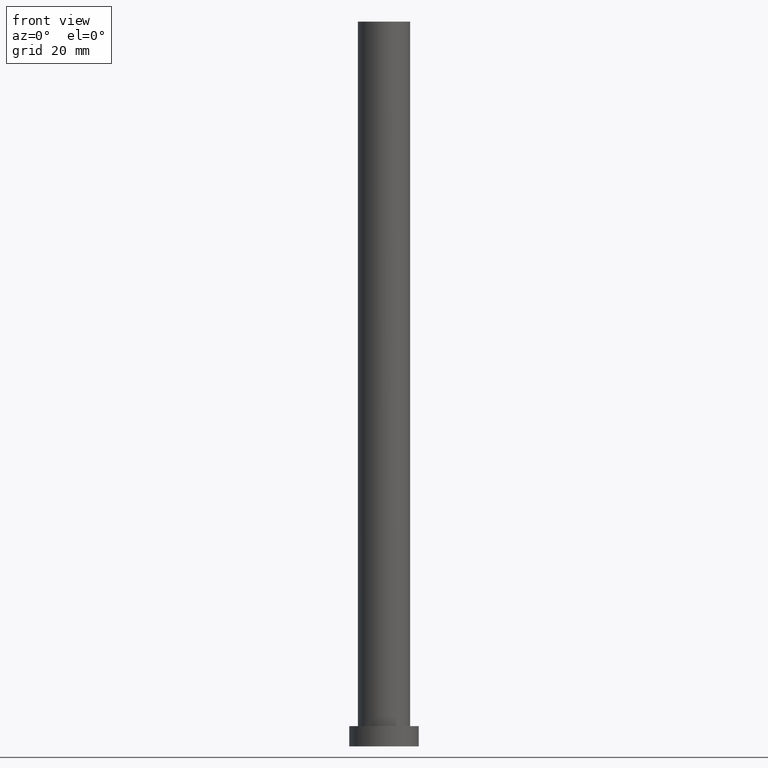
[diagram: clean part render]
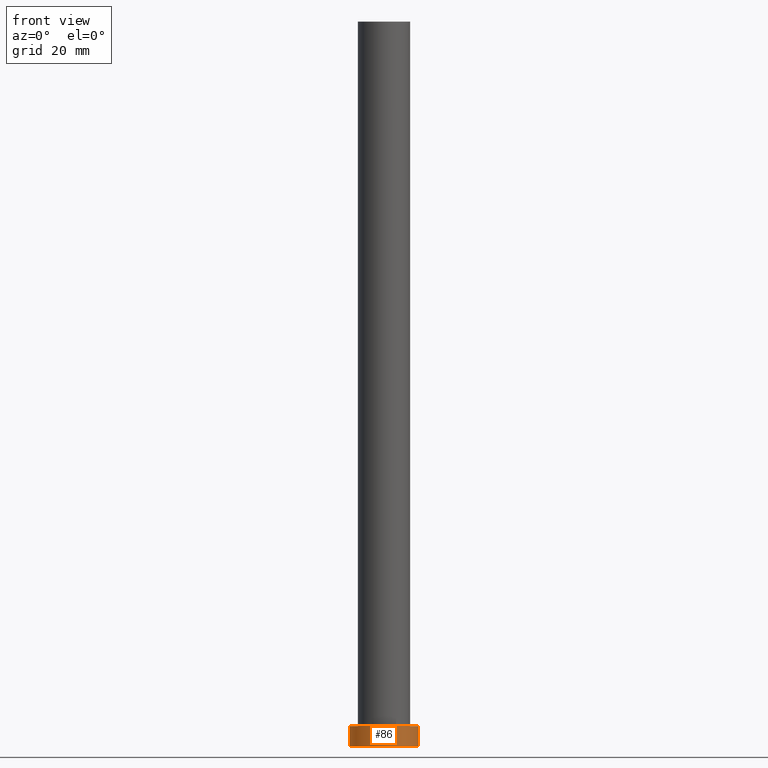
[diagram: same view with one face highlighted and labeled with its STEP entity id]
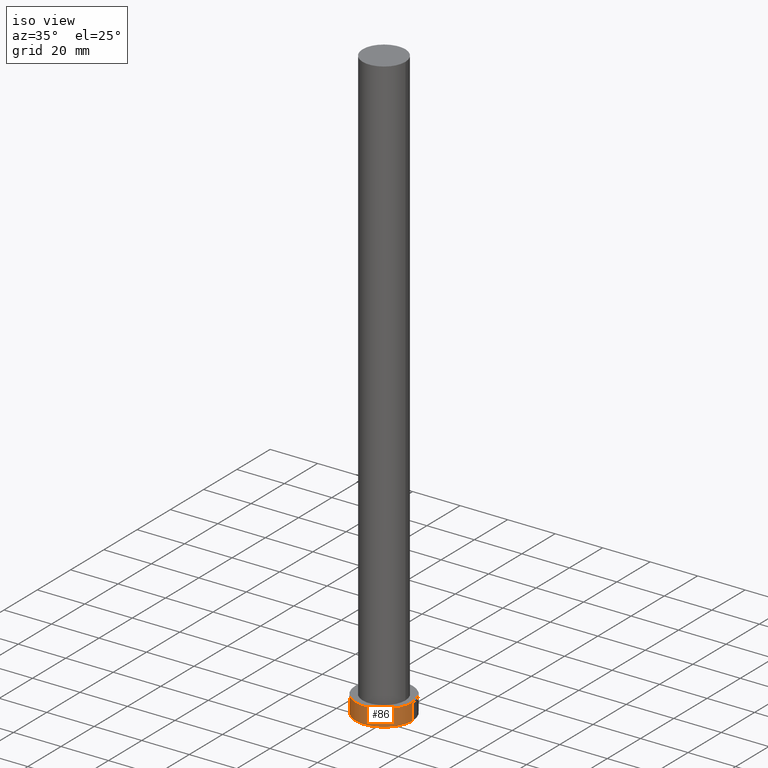
[diagram: same view with one face highlighted and labeled with its STEP entity id]
A machine part, front view. The second image highlights one B-rep face of the part: STEP entity #86.
A second angle (iso view) of the same face is appended — the face is thin or edge-on in the first view.
In plain terms, the highlighted cylindrical surface (edge-blend (fillet) strip) has radius 12 mm, axis along (-0, -0, -1).
Its self-contained STEP definition (entity closure, byte-faithful):
#6 = VERTEX_POINT ( 'NONE', #80 ) ;
#22 = FACE_OUTER_BOUND ( 'NONE', #123, .T. ) ;
#26 = LINE ( 'NONE', #66, #239 ) ;
#29 = DIRECTION ( 'NONE',  ( -0.000000000000000000, -0.000000000000000000, -1.000000000000000000 ) ) ;
#32 = AXIS2_PLACEMENT_3D ( 'NONE', #197, #226, #212 ) ;
#39 = CARTESIAN_POINT ( 'NONE',  ( 0.000000000000000000, 0.000000000000000000, 7.000000000000000000 ) ) ;
#46 = AXIS2_PLACEMENT_3D ( 'NONE', #246, #47, #126 ) ;
#47 = DIRECTION ( 'NONE',  ( 0.000000000000000000, 0.000000000000000000, 1.000000000000000000 ) ) ;
#52 = AXIS2_PLACEMENT_3D ( 'NONE', #39, #104, #89 ) ;
#65 = CARTESIAN_POINT ( 'NONE',  ( -12.00000000000000178, 0.000000000000000000, 0.000000000000000000 ) ) ;
#66 = CARTESIAN_POINT ( 'NONE',  ( 12.00000000000000178, 1.469576158976824144E-15, 7.000000000000000000 ) ) ;
#78 = VERTEX_POINT ( 'NONE', #205 ) ;
#80 = CARTESIAN_POINT ( 'NONE',  ( -12.00000000000000178, 0.000000000000000000, 7.000000000000000000 ) ) ;
#86 = ADVANCED_FACE ( 'NONE', ( #22 ), #188, .T. ) ;
#89 = DIRECTION ( 'NONE',  ( -1.000000000000000000, 0.000000000000000000, 0.000000000000000000 ) ) ;
#100 = ORIENTED_EDGE ( 'NONE', *, *, #171, .F. ) ;
#103 = CIRCLE ( 'NONE', #46, 12.00000000000000178 ) ;
#104 = DIRECTION ( 'NONE',  ( -0.000000000000000000, -0.000000000000000000, -1.000000000000000000 ) ) ;
#123 = EDGE_LOOP ( 'NONE', ( #166, #100, #222, #235 ) ) ;
#126 = DIRECTION ( 'NONE',  ( 1.000000000000000000, 0.000000000000000000, 0.000000000000000000 ) ) ;
#134 = EDGE_CURVE ( 'NONE', #6, #167, #153, .T. ) ;
#152 = CARTESIAN_POINT ( 'NONE',  ( -12.00000000000000178, 0.000000000000000000, 7.000000000000000000 ) ) ;
#153 = LINE ( 'NONE', #152, #178 ) ;
#166 = ORIENTED_EDGE ( 'NONE', *, *, #225, .F. ) ;
#167 = VERTEX_POINT ( 'NONE', #65 ) ;
#171 = EDGE_CURVE ( 'NONE', #6, #78, #237, .T. ) ;
#172 = CARTESIAN_POINT ( 'NONE',  ( 12.00000000000000178, 1.469576158976824144E-15, 0.000000000000000000 ) ) ;
#178 = VECTOR ( 'NONE', #208, 1000.000000000000000 ) ;
#188 = CYLINDRICAL_SURFACE ( 'NONE', #52, 12.00000000000000178 ) ;
#191 = VERTEX_POINT ( 'NONE', #172 ) ;
#197 = CARTESIAN_POINT ( 'NONE',  ( 0.000000000000000000, 0.000000000000000000, 7.000000000000000000 ) ) ;
#205 = CARTESIAN_POINT ( 'NONE',  ( 12.00000000000000178, 1.469576158976824144E-15, 7.000000000000000000 ) ) ;
#208 = DIRECTION ( 'NONE',  ( -0.000000000000000000, -0.000000000000000000, -1.000000000000000000 ) ) ;
#212 = DIRECTION ( 'NONE',  ( 1.000000000000000000, 0.000000000000000000, 0.000000000000000000 ) ) ;
#215 = EDGE_CURVE ( 'NONE', #167, #191, #103, .T. ) ;
#222 = ORIENTED_EDGE ( 'NONE', *, *, #134, .T. ) ;
#225 = EDGE_CURVE ( 'NONE', #78, #191, #26, .T. ) ;
#226 = DIRECTION ( 'NONE',  ( 0.000000000000000000, 0.000000000000000000, 1.000000000000000000 ) ) ;
#235 = ORIENTED_EDGE ( 'NONE', *, *, #215, .T. ) ;
#237 = CIRCLE ( 'NONE', #32, 12.00000000000000178 ) ;
#239 = VECTOR ( 'NONE', #29, 1000.000000000000000 ) ;
#246 = CARTESIAN_POINT ( 'NONE',  ( 0.000000000000000000, 0.000000000000000000, 0.000000000000000000 ) ) ;